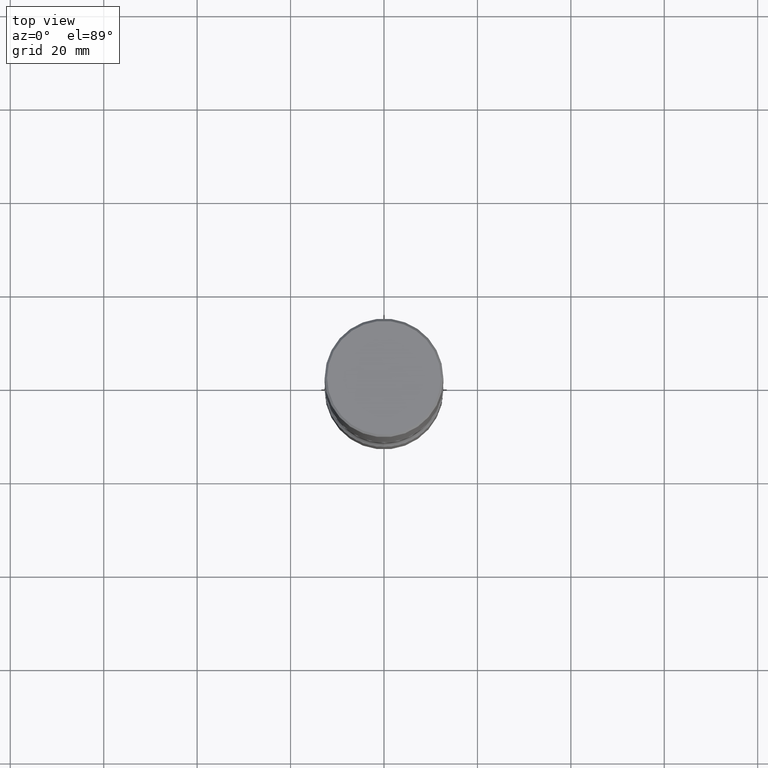
[diagram: clean part render]
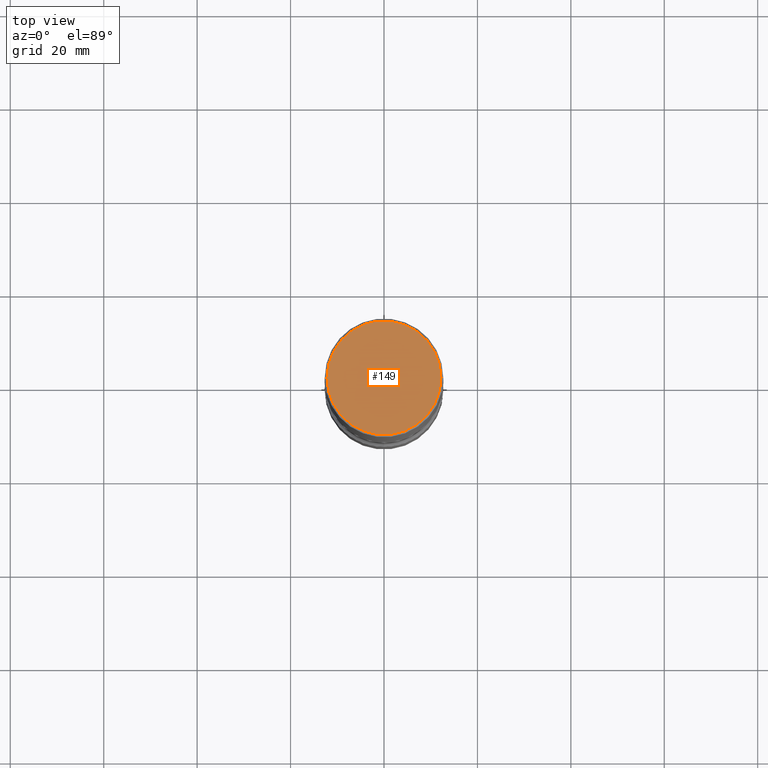
[diagram: same view with one face highlighted and labeled with its STEP entity id]
A machine part, top view. The second image highlights one B-rep face of the part: STEP entity #149.
In plain terms, the highlighted planar face has unit normal (0, -0, -1).
Its self-contained STEP definition (entity closure, byte-faithful):
#59 = CIRCLE ( 'NONE', #431, 0.4799999999999998712 ) ;
#84 = CARTESIAN_POINT ( 'NONE',  ( -0.4799999999999998712, 3.386736898677838408E-15, 1.280553747027767124E-17 ) ) ;
#87 = CIRCLE ( 'NONE', #272, 0.4799999999999998712 ) ;
#112 = VERTEX_POINT ( 'NONE', #84 ) ;
#115 = VERTEX_POINT ( 'NONE', #216 ) ;
#143 = DIRECTION ( 'NONE',  ( 1.000000000000000000, -6.982962677686266711E-15, 4.876036955247130525E-29 ) ) ;
#149 = ADVANCED_FACE ( 'NONE', ( #288 ), #254, .F. ) ;
#170 = DIRECTION ( 'NONE',  ( -1.000000000000000000, 6.982962677686265922E-15, -4.876176775795935793E-29 ) ) ;
#209 = DIRECTION ( 'NONE',  ( 2.438088387897960049E-29, -3.491481338843145188E-15, -1.000000000000000000 ) ) ;
#216 = CARTESIAN_POINT ( 'NONE',  ( 0.4799999999999998712, -3.396558832296481704E-15, 1.280553747032483033E-17 ) ) ;
#228 = AXIS2_PLACEMENT_3D ( 'NONE', #409, #209, #170 ) ;
#235 = CARTESIAN_POINT ( 'NONE',  ( -3.131554243005659264E-46, 4.471029511141341874E-32, 1.280553747030123384E-17 ) ) ;
#254 = PLANE ( 'NONE',  #228 ) ;
#267 = DIRECTION ( 'NONE',  ( -2.445468806185136597E-29, 3.491481338843145583E-15, 1.000000000000000000 ) ) ;
#272 = AXIS2_PLACEMENT_3D ( 'NONE', #516, #267, #143 ) ;
#276 = DIRECTION ( 'NONE',  ( 1.000000000000000000, -6.982962677686266711E-15, 4.876036955247130525E-29 ) ) ;
#284 = EDGE_LOOP ( 'NONE', ( #477, #538 ) ) ;
#288 = FACE_OUTER_BOUND ( 'NONE', #284, .T. ) ;
#313 = DIRECTION ( 'NONE',  ( -2.445468806185136597E-29, 3.491481338843145583E-15, 1.000000000000000000 ) ) ;
#317 = EDGE_CURVE ( 'NONE', #115, #112, #87, .T. ) ;
#409 = CARTESIAN_POINT ( 'NONE',  ( 3.351822085289406759E-15, 0.4799999999999998712, -1.669508273909558853E-15 ) ) ;
#431 = AXIS2_PLACEMENT_3D ( 'NONE', #235, #313, #276 ) ;
#462 = EDGE_CURVE ( 'NONE', #112, #115, #59, .T. ) ;
#477 = ORIENTED_EDGE ( 'NONE', *, *, #462, .T. ) ;
#516 = CARTESIAN_POINT ( 'NONE',  ( -3.131554243005659264E-46, 4.471029511141341874E-32, 1.280553747030123384E-17 ) ) ;
#538 = ORIENTED_EDGE ( 'NONE', *, *, #317, .T. ) ;